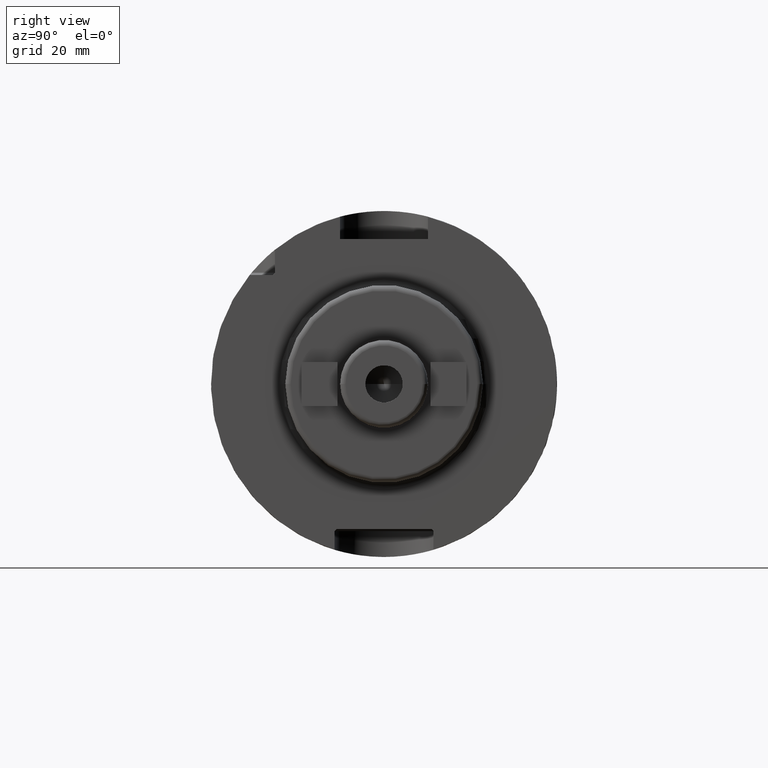
[diagram: clean part render]
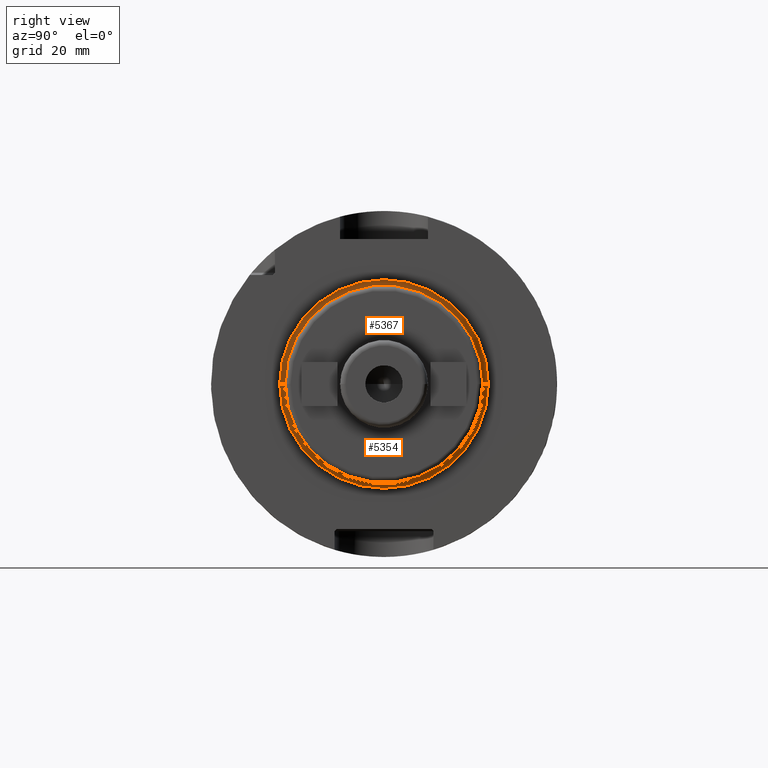
[diagram: same view with one multi-face feature highlighted, each face labeled with its STEP entity id]
A machine part, right view. The highlighted faces form ONE feature: a constant-radius fillet chain: 2 tangent blend faces with common blend radius 1 mm. The faces share edges in the B-rep.
Their STEP definitions:
[1] entity #5354 (Torus):
#1708=CARTESIAN_POINT('',(2.6E1,0.E0,0.E0));
#1709=DIRECTION('',(1.E0,0.E0,0.E0));
#1710=DIRECTION('',(0.E0,-1.E0,0.E0));
#1711=AXIS2_PLACEMENT_3D('',#1708,#1709,#1710);
#1956=CARTESIAN_POINT('',(2.7E1,-1.9E1,0.E0));
#1957=DIRECTION('',(0.E0,0.E0,-1.E0));
#1958=DIRECTION('',(-1.E0,0.E0,0.E0));
#1959=AXIS2_PLACEMENT_3D('',#1956,#1957,#1958);
#1961=CARTESIAN_POINT('',(2.7E1,1.9E1,0.E0));
#1962=DIRECTION('',(0.E0,0.E0,1.E0));
#1963=DIRECTION('',(-1.E0,0.E0,0.E0));
#1964=AXIS2_PLACEMENT_3D('',#1961,#1962,#1963);
#1980=CARTESIAN_POINT('',(2.7E1,0.E0,0.E0));
#1981=DIRECTION('',(1.E0,0.E0,0.E0));
#1982=DIRECTION('',(0.E0,-1.E0,0.E0));
#1983=AXIS2_PLACEMENT_3D('',#1980,#1981,#1982);
#3190=CARTESIAN_POINT('',(2.6E1,-1.9E1,0.E0));
#3191=CARTESIAN_POINT('',(2.6E1,1.9E1,0.E0));
#3192=VERTEX_POINT('',#3190);
#3193=VERTEX_POINT('',#3191);
#3194=CARTESIAN_POINT('',(2.7E1,-1.8E1,0.E0));
#3195=CARTESIAN_POINT('',(2.7E1,1.8E1,0.E0));
#3196=VERTEX_POINT('',#3194);
#3197=VERTEX_POINT('',#3195);
#5340=CARTESIAN_POINT('',(2.7E1,0.E0,0.E0));
#5341=DIRECTION('',(1.E0,0.E0,0.E0));
#5342=DIRECTION('',(0.E0,-9.999908778696E-1,4.271320345439E-3));
#5343=AXIS2_PLACEMENT_3D('',#5340,#5341,#5342);
#5344=TOROIDAL_SURFACE('',#5343,1.9E1,1.E0);
#5345=ORIENTED_EDGE('',*,*,#5047,.F.);
#5347=ORIENTED_EDGE('',*,*,#5346,.T.);
#5349=ORIENTED_EDGE('',*,*,#5348,.T.);
#5351=ORIENTED_EDGE('',*,*,#5350,.F.);
#5352=EDGE_LOOP('',(#5345,#5347,#5349,#5351));
#5353=FACE_OUTER_BOUND('',#5352,.F.);
#5354=ADVANCED_FACE('',(#5353),#5344,.F.);
#1712=CIRCLE('',#1711,1.9E1);
#1960=CIRCLE('',#1959,1.E0);
#1965=CIRCLE('',#1964,1.E0);
#1984=CIRCLE('',#1983,1.8E1);
#5047=EDGE_CURVE('',#3192,#3193,#1712,.T.);
#5346=EDGE_CURVE('',#3192,#3196,#1960,.T.);
#5348=EDGE_CURVE('',#3196,#3197,#1984,.T.);
#5350=EDGE_CURVE('',#3193,#3197,#1965,.T.);
[2] entity #5367 (Torus):
#1713=CARTESIAN_POINT('',(2.6E1,0.E0,0.E0));
#1714=DIRECTION('',(1.E0,0.E0,0.E0));
#1715=DIRECTION('',(0.E0,1.E0,0.E0));
#1716=AXIS2_PLACEMENT_3D('',#1713,#1714,#1715);
#1956=CARTESIAN_POINT('',(2.7E1,-1.9E1,0.E0));
#1957=DIRECTION('',(0.E0,0.E0,-1.E0));
#1958=DIRECTION('',(-1.E0,0.E0,0.E0));
#1959=AXIS2_PLACEMENT_3D('',#1956,#1957,#1958);
#1961=CARTESIAN_POINT('',(2.7E1,1.9E1,0.E0));
#1962=DIRECTION('',(0.E0,0.E0,1.E0));
#1963=DIRECTION('',(-1.E0,0.E0,0.E0));
#1964=AXIS2_PLACEMENT_3D('',#1961,#1962,#1963);
#1971=CARTESIAN_POINT('',(2.7E1,0.E0,0.E0));
#1972=DIRECTION('',(1.E0,0.E0,0.E0));
#1973=DIRECTION('',(0.E0,1.E0,0.E0));
#1974=AXIS2_PLACEMENT_3D('',#1971,#1972,#1973);
#3190=CARTESIAN_POINT('',(2.6E1,-1.9E1,0.E0));
#3191=CARTESIAN_POINT('',(2.6E1,1.9E1,0.E0));
#3192=VERTEX_POINT('',#3190);
#3193=VERTEX_POINT('',#3191);
#3194=CARTESIAN_POINT('',(2.7E1,-1.8E1,0.E0));
#3195=CARTESIAN_POINT('',(2.7E1,1.8E1,0.E0));
#3196=VERTEX_POINT('',#3194);
#3197=VERTEX_POINT('',#3195);
#5355=CARTESIAN_POINT('',(2.7E1,0.E0,0.E0));
#5356=DIRECTION('',(1.E0,0.E0,0.E0));
#5357=DIRECTION('',(0.E0,9.999908778696E-1,-4.271320345439E-3));
#5358=AXIS2_PLACEMENT_3D('',#5355,#5356,#5357);
#5359=TOROIDAL_SURFACE('',#5358,1.9E1,1.E0);
#5360=ORIENTED_EDGE('',*,*,#5049,.F.);
#5361=ORIENTED_EDGE('',*,*,#5350,.T.);
#5363=ORIENTED_EDGE('',*,*,#5362,.T.);
#5364=ORIENTED_EDGE('',*,*,#5346,.F.);
#5365=EDGE_LOOP('',(#5360,#5361,#5363,#5364));
#5366=FACE_OUTER_BOUND('',#5365,.F.);
#5367=ADVANCED_FACE('',(#5366),#5359,.F.);
#1717=CIRCLE('',#1716,1.9E1);
#1960=CIRCLE('',#1959,1.E0);
#1965=CIRCLE('',#1964,1.E0);
#1975=CIRCLE('',#1974,1.8E1);
#5049=EDGE_CURVE('',#3193,#3192,#1717,.T.);
#5346=EDGE_CURVE('',#3192,#3196,#1960,.T.);
#5350=EDGE_CURVE('',#3193,#3197,#1965,.T.);
#5362=EDGE_CURVE('',#3197,#3196,#1975,.T.);